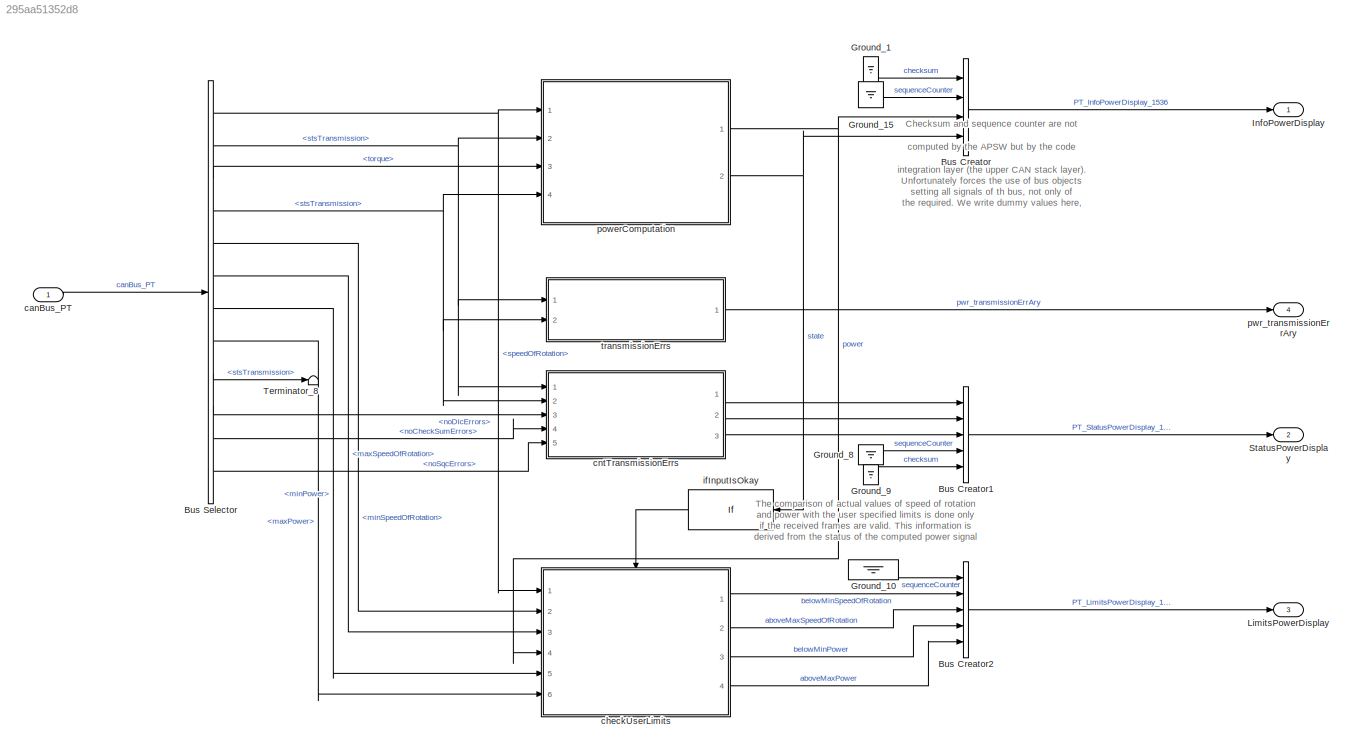
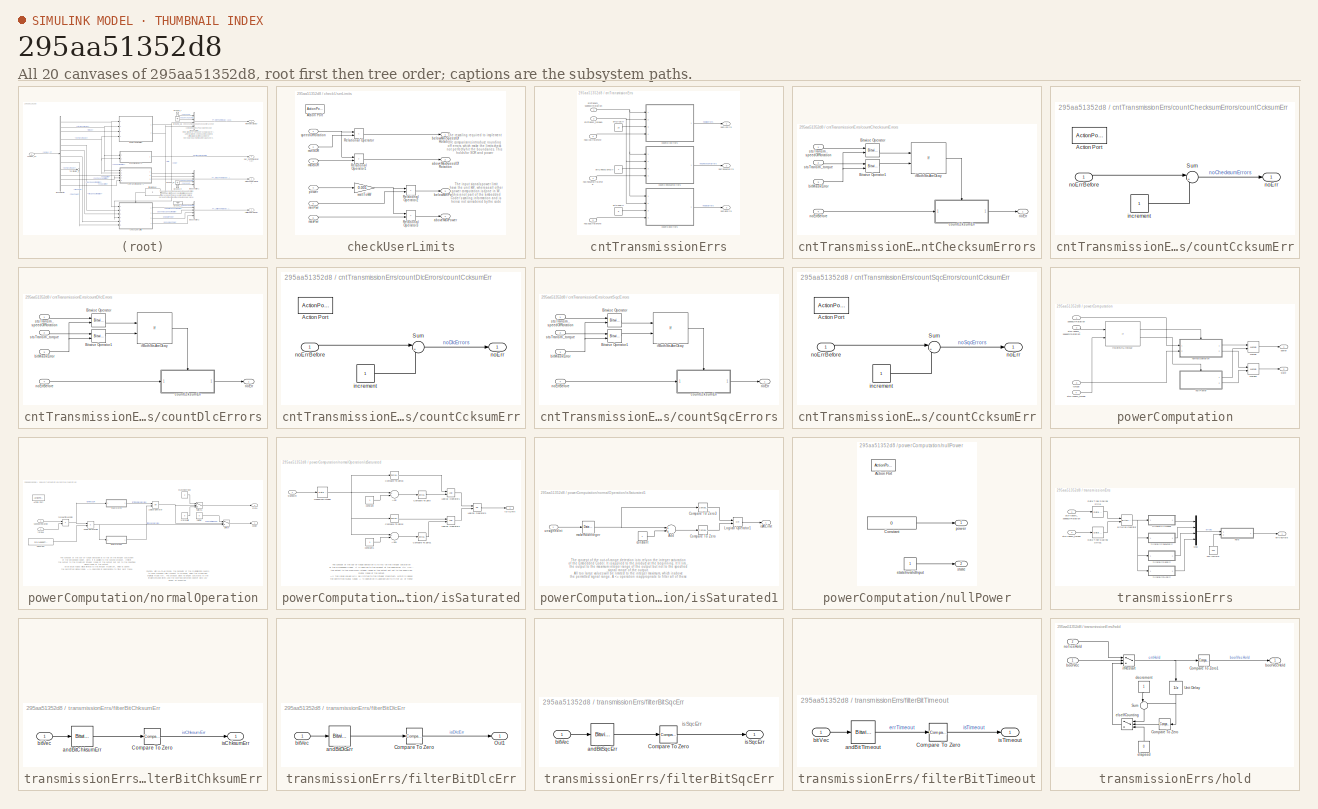
[diagram: thumbnail index - all 20 canvases of the model, root first then tree order]
MODEL slx_295aa51352d8
KIND model
CONFIG AbsTol = auto
CONFIG EnableMultiTasking = off
CONFIG FixedStep = auto
CONFIG MaxStep = auto
CONFIG MinStep = auto
CONFIG RelTol = 1e-3
CONFIG SampleTimeConstraint = Unconstrained
CONFIG Solver = FixedStepDiscrete
CONFIG SolverName = FixedStepDiscrete
CONFIG StartTime = 0.0
CONFIG StopTime = 10.0
BLOCK [BusCreator] Bus Creator
  DisplayOption = bar
  InheritFromInputs = on
  Inputs = 4
  NonVirtualBus = on
  OutDataTypeStr = Bus: cap_PT_InfoPowerDisplay_1536_t
  Ports = [4, 1]
BLOCK [BusCreator] Bus Creator1
  DisplayOption = bar
  InheritFromInputs = on
  Inputs = 5
  NonVirtualBus = on
  OutDataTypeStr = Bus: cap_PT_StatusPowerDisplay_1537_t
  Ports = [5, 1]
BLOCK [BusCreator] Bus Creator2
  DisplayOption = bar
  InheritFromInputs = on
  Inputs = 5
  NonVirtualBus = on
  OutDataTypeStr = Bus: cap_PT_LimitsPowerDisplay_1538_t
  Ports = [5, 1]
BLOCK [BusSelector] Bus Selector
  OutputAsBus = off
  OutputSignals = PT_StateEcu01_1024_sts.signals.speedOfRotation,PT_StateEcu01_1024_sts.stsTransmission,PT_StateEcu02_1040_sts.signals.torque,PT_StateEcu02_1040_sts.stsTransmission,PT_UserLimits_2032_sts.signals.minSpeedOfRotation,PT_UserLimits_2032_sts.signals.maxSpeedOfRotation,PT_UserLimits_2032_sts.signals.minPower,PT_UserLimits_2032_sts.signals.maxPower,PT_UserLimits_2032_sts.stsTransmission,PT_StatusPowerDisp...<+139ch>
  Ports = [1, 12]
BLOCK [Ground] Ground_1
BLOCK [Ground] Ground_10
BLOCK [Ground] Ground_15
BLOCK [Ground] Ground_8
BLOCK [Ground] Ground_9
BLOCK [Outport] InfoPowerDisplay
  IconDisplay = Port number
  OutDataTypeStr = Bus: cap_PT_InfoPowerDisplay_1536_t
BLOCK [Outport] LimitsPowerDisplay
  IconDisplay = Port number
  OutDataTypeStr = Bus: cap_PT_LimitsPowerDisplay_1538_t
  Port = 3
BLOCK [Outport] StatusPowerDisplay
  IconDisplay = Port number
  OutDataTypeStr = Bus: cap_PT_StatusPowerDisplay_1537_t
  Port = 2
BLOCK [Terminator] Terminator_8
BLOCK [Inport] canBus_PT
  BusOutputAsStruct = on
  IconDisplay = Port number
  OutDataTypeStr = Bus: cap_canBus_PT_t
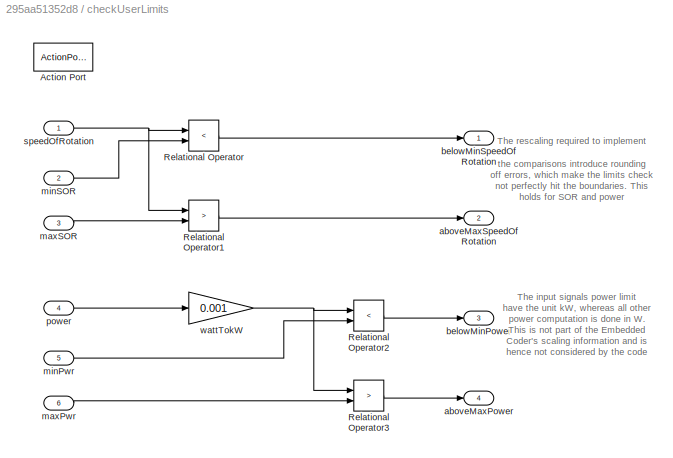
BLOCK [SubSystem] checkUserLimits
  Ports = [6, 4, 0, 0, 0, 0, 0, 1]
  RTWFcnName = pwr_detectAndCountError
  RTWFcnNameOpts = User specified
  RequestExecContextInheritance = off
  TreatAsAtomicUnit = on
BLOCK [ActionPort] checkUserLimits/Action Port
  ActionPortLabel = if(u1 == 0)
  PropagateVarSize = During execution
BLOCK [RelationalOperator] checkUserLimits/Relational Operator
  InputSameDT = off
  Operator = <
  OutDataTypeStr = boolean
  Ports = [2, 1]
BLOCK [RelationalOperator] checkUserLimits/Relational Operator1
  InputSameDT = off
  Operator = >
  OutDataTypeStr = boolean
  Ports = [2, 1]
BLOCK [RelationalOperator] checkUserLimits/Relational Operator2
  InputSameDT = off
  Operator = <
  OutDataTypeStr = boolean
  Ports = [2, 1]
BLOCK [RelationalOperator] checkUserLimits/Relational Operator3
  InputSameDT = off
  Operator = >
  OutDataTypeStr = boolean
  Ports = [2, 1]
BLOCK [Outport] checkUserLimits/aboveMaxPower
  IconDisplay = Port number
  Port = 4
BLOCK [Outport] checkUserLimits/aboveMaxSpeedOfRotation
  IconDisplay = Port number
  Port = 2
BLOCK [Outport] checkUserLimits/belowMinPower
  IconDisplay = Port number
  Port = 3
BLOCK [Outport] checkUserLimits/belowMinSpeedOfRotation
  IconDisplay = Port number
BLOCK [Inport] checkUserLimits/maxPwr
  IconDisplay = Port number
  Port = 6
BLOCK [Inport] checkUserLimits/maxSOR
  IconDisplay = Port number
  Port = 3
BLOCK [Inport] checkUserLimits/minPwr
  IconDisplay = Port number
  Port = 5
BLOCK [Inport] checkUserLimits/minSOR
  IconDisplay = Port number
  Port = 2
BLOCK [Inport] checkUserLimits/power
  IconDisplay = Port number
  Port = 4
BLOCK [Inport] checkUserLimits/speedOfRotation
  IconDisplay = Port number
BLOCK [Gain] checkUserLimits/wattTokW
  Gain = 0.001
  OutDataTypeStr = fixdt(0,16,2^-1,-10)
  ParamDataTypeStr = Inherit: Inherit via internal rule
  SaturateOnIntegerOverflow = off
BLOCK [SubSystem] cntTransmissionErrs
  Ports = [5, 3]
  RequestExecContextInheritance = off
BLOCK [Constant] cntTransmissionErrs/bitCheckSumErr
  OutDataTypeStr = uint8
  Value = 4
BLOCK [Constant] cntTransmissionErrs/bitDlcErr
  OutDataTypeStr = uint8
  Value = 16
BLOCK [Constant] cntTransmissionErrs/bitSqcErr
  OutDataTypeStr = uint8
  Value = 8
BLOCK [SubSystem] cntTransmissionErrs/countChecksumErrors
  Ports = [4, 1]
  RTWFcnName = pwr_detectAndCountError
  RTWFcnNameOpts = User specified
  RTWSystemCode = Reusable function
  RequestExecContextInheritance = off
  TreatAsAtomicUnit = on
BLOCK [Reference] cntTransmissionErrs/countChecksumErrors/Bitwise Operator  REF=simulink/Logic and Bit
Operations/Bitwise
Operator
  Ports = [2, 1]
  SourceBlock = simulink/Logic and Bit\nOperations/Bitwise\nOperator
  SourceProductBaseCode = SL
  SourceProductName = Simulink
  SourceType = Bitwise Operator
BLOCK [Reference] cntTransmissionErrs/countChecksumErrors/Bitwise Operator1  REF=simulink/Logic and Bit
Operations/Bitwise
Operator
  Ports = [2, 1]
  SourceBlock = simulink/Logic and Bit\nOperations/Bitwise\nOperator
  SourceProductBaseCode = SL
  SourceProductName = Simulink
  SourceType = Bitwise Operator
BLOCK [Inport] cntTransmissionErrs/countChecksumErrors/bitMaskError
  IconDisplay = Port number
  Port = 3
BLOCK [SubSystem] cntTransmissionErrs/countChecksumErrors/countCcksumErr
  Ports = [1, 1, 0, 0, 0, 0, 0, 1]
  RequestExecContextInheritance = off
  TreatAsAtomicUnit = on
BLOCK [ActionPort] cntTransmissionErrs/countChecksumErrors/countCcksumErr/Action Port
  ActionPortLabel = if(u1 ~= 0  |  u2 ~= 0)
  PropagateVarSize = During execution
BLOCK [Sum] cntTransmissionErrs/countChecksumErrors/countCcksumErr/Sum
  IconShape = round
  InputSameDT = off
  Inputs = |++
  OutDataTypeStr = Inherit: Inherit via internal rule
  Ports = [2, 1]
  SaturateOnIntegerOverflow = off
BLOCK [Constant] cntTransmissionErrs/countChecksumErrors/countCcksumErr/increment
  OutDataTypeStr = uint8
BLOCK [Outport] cntTransmissionErrs/countChecksumErrors/countCcksumErr/noErr
  IconDisplay = Port number
BLOCK [Inport] cntTransmissionErrs/countChecksumErrors/countCcksumErr/noErrBefore
  IconDisplay = Port number
BLOCK [If] cntTransmissionErrs/countChecksumErrors/ifBothStsAreOkay
  IfExpression = u1 ~= 0  |  u2 ~= 0
  NumInputs = 2
  Ports = [2, 1]
  ShowElse = off
BLOCK [Outport] cntTransmissionErrs/countChecksumErrors/noErr
  IconDisplay = Port number
BLOCK [Inport] cntTransmissionErrs/countChecksumErrors/noErrBefore
  IconDisplay = Port number
  Port = 4
BLOCK [Inport] cntTransmissionErrs/countChecksumErrors/stsTransm_speedOfRotation
  IconDisplay = Port number
BLOCK [Inport] cntTransmissionErrs/countChecksumErrors/stsTransm_torque
  IconDisplay = Port number
  Port = 2
BLOCK [SubSystem] cntTransmissionErrs/countDlcErrors
  Ports = [4, 1]
  RTWFcnName = pwr_detectAndCountError
  RTWFcnNameOpts = User specified
  RTWSystemCode = Reusable function
  RequestExecContextInheritance = off
  TreatAsAtomicUnit = on
BLOCK [Reference] cntTransmissionErrs/countDlcErrors/Bitwise Operator  REF=simulink/Logic and Bit
Operations/Bitwise
Operator
  Ports = [2, 1]
  SourceBlock = simulink/Logic and Bit\nOperations/Bitwise\nOperator
  SourceProductBaseCode = SL
  SourceProductName = Simulink
  SourceType = Bitwise Operator
BLOCK [Reference] cntTransmissionErrs/countDlcErrors/Bitwise Operator1  REF=simulink/Logic and Bit
Operations/Bitwise
Operator
  Ports = [2, 1]
  SourceBlock = simulink/Logic and Bit\nOperations/Bitwise\nOperator
  SourceProductBaseCode = SL
  SourceProductName = Simulink
  SourceType = Bitwise Operator
BLOCK [Inport] cntTransmissionErrs/countDlcErrors/bitMaskError
  IconDisplay = Port number
  Port = 3
BLOCK [SubSystem] cntTransmissionErrs/countDlcErrors/countCcksumErr
  Ports = [1, 1, 0, 0, 0, 0, 0, 1]
  RequestExecContextInheritance = off
  TreatAsAtomicUnit = on
BLOCK [ActionPort] cntTransmissionErrs/countDlcErrors/countCcksumErr/Action Port
  ActionPortLabel = if(u1 ~= 0  |  u2 ~= 0)
  PropagateVarSize = During execution
BLOCK [Sum] cntTransmissionErrs/countDlcErrors/countCcksumErr/Sum
  IconShape = round
  InputSameDT = off
  Inputs = |++
  OutDataTypeStr = Inherit: Inherit via internal rule
  Ports = [2, 1]
  SaturateOnIntegerOverflow = off
BLOCK [Constant] cntTransmissionErrs/countDlcErrors/countCcksumErr/increment
  OutDataTypeStr = uint8
BLOCK [Outport] cntTransmissionErrs/countDlcErrors/countCcksumErr/noErr
  IconDisplay = Port number
BLOCK [Inport] cntTransmissionErrs/countDlcErrors/countCcksumErr/noErrBefore
  IconDisplay = Port number
BLOCK [If] cntTransmissionErrs/countDlcErrors/ifBothStsAreOkay
  IfExpression = u1 ~= 0  |  u2 ~= 0
  NumInputs = 2
  Ports = [2, 1]
  ShowElse = off
BLOCK [Outport] cntTransmissionErrs/countDlcErrors/noErr
  IconDisplay = Port number
BLOCK [Inport] cntTransmissionErrs/countDlcErrors/noErrBefore
  IconDisplay = Port number
  Port = 4
BLOCK [Inport] cntTransmissionErrs/countDlcErrors/stsTransm_speedOfRotation
  IconDisplay = Port number
BLOCK [Inport] cntTransmissionErrs/countDlcErrors/stsTransm_torque
  IconDisplay = Port number
  Port = 2
BLOCK [SubSystem] cntTransmissionErrs/countSqcErrors
  Ports = [4, 1]
  RTWFcnName = pwr_detectAndCountError
  RTWFcnNameOpts = User specified
  RTWSystemCode = Reusable function
  RequestExecContextInheritance = off
  TreatAsAtomicUnit = on
BLOCK [Reference] cntTransmissionErrs/countSqcErrors/Bitwise Operator  REF=simulink/Logic and Bit
Operations/Bitwise
Operator
  Ports = [2, 1]
  SourceBlock = simulink/Logic and Bit\nOperations/Bitwise\nOperator
  SourceProductBaseCode = SL
  SourceProductName = Simulink
  SourceType = Bitwise Operator
BLOCK [Reference] cntTransmissionErrs/countSqcErrors/Bitwise Operator1  REF=simulink/Logic and Bit
Operations/Bitwise
Operator
  Ports = [2, 1]
  SourceBlock = simulink/Logic and Bit\nOperations/Bitwise\nOperator
  SourceProductBaseCode = SL
  SourceProductName = Simulink
  SourceType = Bitwise Operator
BLOCK [Inport] cntTransmissionErrs/countSqcErrors/bitMaskError
  IconDisplay = Port number
  Port = 3
BLOCK [SubSystem] cntTransmissionErrs/countSqcErrors/countCcksumErr
  Ports = [1, 1, 0, 0, 0, 0, 0, 1]
  RequestExecContextInheritance = off
  TreatAsAtomicUnit = on
BLOCK [ActionPort] cntTransmissionErrs/countSqcErrors/countCcksumErr/Action Port
  ActionPortLabel = if(u1 ~= 0  |  u2 ~= 0)
  PropagateVarSize = During execution
BLOCK [Sum] cntTransmissionErrs/countSqcErrors/countCcksumErr/Sum
  IconShape = round
  InputSameDT = off
  Inputs = |++
  OutDataTypeStr = Inherit: Inherit via internal rule
  Ports = [2, 1]
  SaturateOnIntegerOverflow = off
BLOCK [Constant] cntTransmissionErrs/countSqcErrors/countCcksumErr/increment
  OutDataTypeStr = uint8
BLOCK [Outport] cntTransmissionErrs/countSqcErrors/countCcksumErr/noErr
  IconDisplay = Port number
BLOCK [Inport] cntTransmissionErrs/countSqcErrors/countCcksumErr/noErrBefore
  IconDisplay = Port number
BLOCK [If] cntTransmissionErrs/countSqcErrors/ifBothStsAreOkay
  IfExpression = u1 ~= 0  |  u2 ~= 0
  NumInputs = 2
  Ports = [2, 1]
  ShowElse = off
BLOCK [Outport] cntTransmissionErrs/countSqcErrors/noErr
  IconDisplay = Port number
BLOCK [Inport] cntTransmissionErrs/countSqcErrors/noErrBefore
  IconDisplay = Port number
  Port = 4
BLOCK [Inport] cntTransmissionErrs/countSqcErrors/stsTransm_speedOfRotation
  IconDisplay = Port number
BLOCK [Inport] cntTransmissionErrs/countSqcErrors/stsTransm_torque
  IconDisplay = Port number
  Port = 2
BLOCK [Inport] cntTransmissionErrs/noChksumErrBefore
  IconDisplay = Port number
  Port = 4
BLOCK [Outport] cntTransmissionErrs/noChksumErrs
  IconDisplay = Port number
  Port = 2
BLOCK [Inport] cntTransmissionErrs/noDlcErrBefore
  IconDisplay = Port number
  Port = 3
BLOCK [Outport] cntTransmissionErrs/noDlcErrs
  IconDisplay = Port number
BLOCK [Inport] cntTransmissionErrs/noSqcErrBefore
  IconDisplay = Port number
  Port = 5
BLOCK [Outport] cntTransmissionErrs/noSqcErrs
  IconDisplay = Port number
  Port = 3
BLOCK [Inport] cntTransmissionErrs/stsTransm_speedOfRotation
  IconDisplay = Port number
BLOCK [Inport] cntTransmissionErrs/stsTransm_torque1
  IconDisplay = Port number
  Port = 2
BLOCK [If] ifInputIsOkay
  IfExpression = u1 == 0
  Ports = [1, 1]
  ShowElse = off
BLOCK [SubSystem] powerComputation
  Ports = [4, 2]
  RequestExecContextInheritance = off
BLOCK [Merge] powerComputation/Merge
  Ports = [2, 1]
BLOCK [Merge] powerComputation/Merge1
  Ports = [2, 1]
BLOCK [If] powerComputation/ifBothStsAreOkay
  IfExpression = u1 == 0  &  u2 == 0
  NumInputs = 2
  Ports = [2, 2]
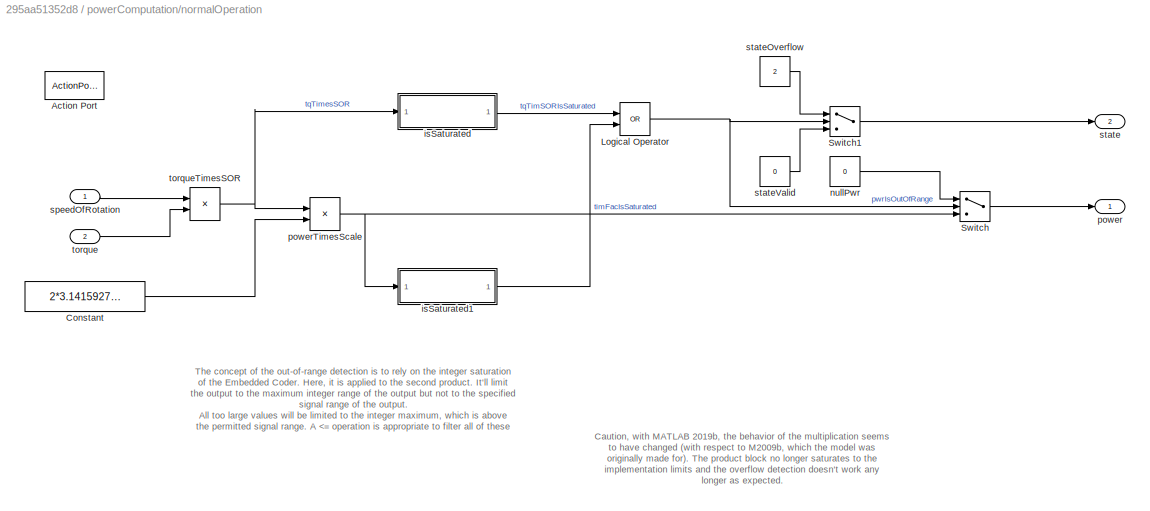
BLOCK [SubSystem] powerComputation/normalOperation
  Ports = [2, 2, 0, 0, 0, 0, 0, 1]
  RequestExecContextInheritance = off
  TreatAsAtomicUnit = on
BLOCK [ActionPort] powerComputation/normalOperation/Action Port
  ActionPortLabel = if(u1 == 0  &  u2 == 0)
  PropagateVarSize = During execution
BLOCK [Constant] powerComputation/normalOperation/Constant
  OutDataTypeStr = fixdt(0,16,19)
  Value = 2*3.1415927/60
BLOCK [Logic] powerComputation/normalOperation/Logical Operator
  AllPortsSameDT = off
  Operator = OR
  OutDataTypeStr = boolean
  Ports = [2, 1]
BLOCK [Switch] powerComputation/normalOperation/Switch
  Criteria = u2 ~= 0
  InputSameDT = off
  OutDataTypeStr = Inherit: Inherit via back propagation
  SaturateOnIntegerOverflow = off
BLOCK [Switch] powerComputation/normalOperation/Switch1
  Criteria = u2 ~= 0
  InputSameDT = off
  OutDataTypeStr = Inherit: Inherit via back propagation
  SaturateOnIntegerOverflow = off
BLOCK [SubSystem] powerComputation/normalOperation/isSaturated
  Ports = [1, 1]
  RequestExecContextInheritance = off
BLOCK [Sum] powerComputation/normalOperation/isSaturated/Add
  AccumDataTypeStr = Inherit: Same as first input
  InputSameDT = off
  OutDataTypeStr = Inherit: Same as accumulator
  Ports = [2, 1]
  RndMeth = Simplest
  SaturateOnIntegerOverflow = off
BLOCK [Sum] powerComputation/normalOperation/isSaturated/Add1
  AccumDataTypeStr = Inherit: Same as first input
  InputSameDT = off
  Inputs = +-
  OutDataTypeStr = Inherit: Same as accumulator
  Ports = [2, 1]
  RndMeth = Simplest
  SaturateOnIntegerOverflow = off
BLOCK [Reference] powerComputation/normalOperation/isSaturated/Compare To Zero  REF=simulink/Logic and Bit
Operations/Compare
To Zero
  Ports = [1, 1]
  SourceBlock = simulink/Logic and Bit\nOperations/Compare\nTo Zero
  SourceProductBaseCode = SL
  SourceProductName = Simulink
  SourceType = Compare To Zero
BLOCK [Reference] powerComputation/normalOperation/isSaturated/Compare To Zero1  REF=simulink/Logic and Bit
Operations/Compare
To Zero
  Ports = [1, 1]
  SourceBlock = simulink/Logic and Bit\nOperations/Compare\nTo Zero
  SourceProductBaseCode = SL
  SourceProductName = Simulink
  SourceType = Compare To Zero
BLOCK [Reference] powerComputation/normalOperation/isSaturated/Compare To Zero2  REF=simulink/Logic and Bit
Operations/Compare
To Zero
  Ports = [1, 1]
  SourceBlock = simulink/Logic and Bit\nOperations/Compare\nTo Zero
  SourceProductBaseCode = SL
  SourceProductName = Simulink
  SourceType = Compare To Zero
BLOCK [Reference] powerComputation/normalOperation/isSaturated/Compare To Zero3  REF=simulink/Logic and Bit
Operations/Compare
To Zero
  Ports = [1, 1]
  SourceBlock = simulink/Logic and Bit\nOperations/Compare\nTo Zero
  SourceProductBaseCode = SL
  SourceProductName = Simulink
  SourceType = Compare To Zero
BLOCK [Logic] powerComputation/normalOperation/isSaturated/Logical Operator1
  AllPortsSameDT = off
  OutDataTypeStr = boolean
  Ports = [2, 1]
BLOCK [Logic] powerComputation/normalOperation/isSaturated/Logical Operator2
  AllPortsSameDT = off
  OutDataTypeStr = boolean
  Ports = [2, 1]
BLOCK [Logic] powerComputation/normalOperation/isSaturated/Logical Operator3
  AllPortsSameDT = off
  Operator = OR
  OutDataTypeStr = boolean
  Ports = [2, 1]
BLOCK [Constant] powerComputation/normalOperation/isSaturated/constant
  OutDataTypeStr = Inherit: Inherit via back propagation
BLOCK [Constant] powerComputation/normalOperation/isSaturated/constant1
  OutDataTypeStr = Inherit: Inherit via back propagation
BLOCK [Outport] powerComputation/normalOperation/isSaturated/isAtLimit
  IconDisplay = Port number
BLOCK [Reference] powerComputation/normalOperation/isSaturated/makeRawInteger  REF=simulink/Signal
Attributes/Data Type
Scaling Strip
  Ports = [1, 1]
  SourceBlock = simulink/Signal\nAttributes/Data Type\nScaling Strip
  SourceProductBaseCode = SL
  SourceProductName = Simulink
  SourceType = Scaling Strip
BLOCK [Inport] powerComputation/normalOperation/isSaturated/signedInt
  IconDisplay = Port number
BLOCK [SubSystem] powerComputation/normalOperation/isSaturated1
  Ports = [1, 1]
  RequestExecContextInheritance = off
BLOCK [Sum] powerComputation/normalOperation/isSaturated1/Add
  AccumDataTypeStr = Inherit: Same as first input
  InputSameDT = off
  OutDataTypeStr = Inherit: Same as accumulator
  Ports = [2, 1]
  RndMeth = Simplest
  SaturateOnIntegerOverflow = off
BLOCK [Reference] powerComputation/normalOperation/isSaturated1/Compare To Zero  REF=simulink/Logic and Bit
Operations/Compare
To Zero
  Ports = [1, 1]
  SourceBlock = simulink/Logic and Bit\nOperations/Compare\nTo Zero
  SourceProductBaseCode = SL
  SourceProductName = Simulink
  SourceType = Compare To Zero
BLOCK [Reference] powerComputation/normalOperation/isSaturated1/Compare To Zero3  REF=simulink/Logic and Bit
Operations/Compare
To Zero
  Ports = [1, 1]
  SourceBlock = simulink/Logic and Bit\nOperations/Compare\nTo Zero
  SourceProductBaseCode = SL
  SourceProductName = Simulink
  SourceType = Compare To Zero
BLOCK [Logic] powerComputation/normalOperation/isSaturated1/Logical Operator1
  AllPortsSameDT = off
  Operator = OR
  OutDataTypeStr = boolean
  Ports = [2, 1]
BLOCK [Constant] powerComputation/normalOperation/isSaturated1/constant
  OutDataTypeStr = Inherit: Inherit via back propagation
BLOCK [Outport] powerComputation/normalOperation/isSaturated1/isAtLimit
  IconDisplay = Port number
BLOCK [Reference] powerComputation/normalOperation/isSaturated1/makeRawInteger  REF=simulink/Signal
Attributes/Data Type
Scaling Strip
  Ports = [1, 1]
  SourceBlock = simulink/Signal\nAttributes/Data Type\nScaling Strip
  SourceProductBaseCode = SL
  SourceProductName = Simulink
  SourceType = Scaling Strip
BLOCK [Inport] powerComputation/normalOperation/isSaturated1/unsignedInt
  IconDisplay = Port number
BLOCK [Constant] powerComputation/normalOperation/nullPwr
  OutDataTypeStr = Inherit: Inherit via back propagation
  Value = 0
BLOCK [Outport] powerComputation/normalOperation/power
  IconDisplay = Port number
  InitialOutput = 0
BLOCK [Product] powerComputation/normalOperation/powerTimesScale
  InputSameDT = off
  OutDataTypeStr = fixdt(0,16,2^5,-500000)
  Ports = [2, 1]
  RndMeth = Simplest
BLOCK [Inport] powerComputation/normalOperation/speedOfRotation
  IconDisplay = Port number
BLOCK [Outport] powerComputation/normalOperation/state
  IconDisplay = Port number
  InitialOutput = 1
  Port = 2
BLOCK [Constant] powerComputation/normalOperation/stateOverflow
  OutDataTypeStr = uint8
  Value = 2
BLOCK [Constant] powerComputation/normalOperation/stateValid
  OutDataTypeStr = uint8
  Value = 0
BLOCK [Inport] powerComputation/normalOperation/torque
  IconDisplay = Port number
  Port = 2
BLOCK [Product] powerComputation/normalOperation/torqueTimesSOR
  InputSameDT = off
  OutDataTypeStr = fixdt(1,32,9)
  OutMax = 6553.5*500
  OutMin = 6553.5*(-500)
  Ports = [2, 1]
  RndMeth = Simplest
BLOCK [SubSystem] powerComputation/nullPower
  Ports = [0, 2, 0, 0, 0, 0, 0, 1]
  RequestExecContextInheritance = off
  TreatAsAtomicUnit = on
BLOCK [ActionPort] powerComputation/nullPower/Action Port
  ActionPortLabel = else
  PropagateVarSize = During execution
BLOCK [Constant] powerComputation/nullPower/Constant
  OutDataTypeStr = Inherit: Inherit via back propagation
  Value = 0
BLOCK [Outport] powerComputation/nullPower/power
  IconDisplay = Port number
  InitialOutput = 0
BLOCK [Outport] powerComputation/nullPower/state
  IconDisplay = Port number
  InitialOutput = 1
  Port = 2
BLOCK [Constant] powerComputation/nullPower/stateInvalidInput
  OutDataTypeStr = uint8
BLOCK [Outport] powerComputation/power
  IconDisplay = Port number
BLOCK [Inport] powerComputation/speedOfRotation
  IconDisplay = Port number
BLOCK [Outport] powerComputation/state
  IconDisplay = Port number
  Port = 2
BLOCK [Inport] powerComputation/stsTransm_speedOfRotation
  IconDisplay = Port number
  Port = 2
BLOCK [Inport] powerComputation/stsTransm_torque
  IconDisplay = Port number
  Port = 4
BLOCK [Inport] powerComputation/torque
  IconDisplay = Port number
  Port = 3
BLOCK [Outport] pwr_transmissionErrAry
  IconDisplay = Port number
  Port = 4
BLOCK [SubSystem] transmissionErrs
  Ports = [2, 1]
  RequestExecContextInheritance = off
BLOCK [Reference] transmissionErrs/Bitwise Operator  REF=simulink/Logic and Bit
Operations/Bitwise
Operator
  Ports = [2, 1]
  SourceBlock = simulink/Logic and Bit\nOperations/Bitwise\nOperator
  SourceProductBaseCode = SL
  SourceProductName = Simulink
  SourceType = Bitwise Operator
BLOCK [Reference] transmissionErrs/Data Type Scaling Strip  REF=simulink/Signal
Attributes/Data Type
Scaling Strip
  Ports = [1, 1]
  SourceBlock = simulink/Signal\nAttributes/Data Type\nScaling Strip
  SourceProductBaseCode = SL
  SourceProductName = Simulink
  SourceType = Scaling Strip
BLOCK [Reference] transmissionErrs/Data Type Scaling Strip1  REF=simulink/Signal
Attributes/Data Type
Scaling Strip
  Ports = [1, 1]
  SourceBlock = simulink/Signal\nAttributes/Data Type\nScaling Strip
  SourceProductBaseCode = SL
  SourceProductName = Simulink
  SourceType = Scaling Strip
BLOCK [Mux] transmissionErrs/Mux
  DisplayOption = bar
  Ports = [4, 1]
BLOCK [Outport] transmissionErrs/errVecHold
  IconDisplay = Port number
BLOCK [SubSystem] transmissionErrs/filterBitChksumErr
  Ports = [1, 1]
  RequestExecContextInheritance = off
BLOCK [Reference] transmissionErrs/filterBitChksumErr/Compare To Zero  REF=simulink/Logic and Bit
Operations/Compare
To Zero
  Ports = [1, 1]
  SourceBlock = simulink/Logic and Bit\nOperations/Compare\nTo Zero
  SourceProductBaseCode = SL
  SourceProductName = Simulink
  SourceType = Compare To Zero
BLOCK [Reference] transmissionErrs/filterBitChksumErr/andBitChksumErr  REF=simulink/Logic and Bit
Operations/Bitwise
Operator
  Ports = [1, 1]
  SourceBlock = simulink/Logic and Bit\nOperations/Bitwise\nOperator
  SourceProductBaseCode = SL
  SourceProductName = Simulink
  SourceType = Bitwise Operator
BLOCK [Inport] transmissionErrs/filterBitChksumErr/bitVec
  IconDisplay = Port number
BLOCK [Outport] transmissionErrs/filterBitChksumErr/isChksumErr
  IconDisplay = Port number
BLOCK [SubSystem] transmissionErrs/filterBitDlcErr
  Ports = [1, 1]
  RequestExecContextInheritance = off
BLOCK [Reference] transmissionErrs/filterBitDlcErr/Compare To Zero  REF=simulink/Logic and Bit
Operations/Compare
To Zero
  Ports = [1, 1]
  SourceBlock = simulink/Logic and Bit\nOperations/Compare\nTo Zero
  SourceProductBaseCode = SL
  SourceProductName = Simulink
  SourceType = Compare To Zero
BLOCK [Outport] transmissionErrs/filterBitDlcErr/Out1
  IconDisplay = Port number
BLOCK [Reference] transmissionErrs/filterBitDlcErr/andBitDlcErr  REF=simulink/Logic and Bit
Operations/Bitwise
Operator
  Ports = [1, 1]
  SourceBlock = simulink/Logic and Bit\nOperations/Bitwise\nOperator
  SourceProductBaseCode = SL
  SourceProductName = Simulink
  SourceType = Bitwise Operator
BLOCK [Inport] transmissionErrs/filterBitDlcErr/bitVec
  IconDisplay = Port number
BLOCK [SubSystem] transmissionErrs/filterBitSqcErr
  Ports = [1, 1]
  RequestExecContextInheritance = off
BLOCK [Reference] transmissionErrs/filterBitSqcErr/Compare To Zero  REF=simulink/Logic and Bit
Operations/Compare
To Zero
  Ports = [1, 1]
  SourceBlock = simulink/Logic and Bit\nOperations/Compare\nTo Zero
  SourceProductBaseCode = SL
  SourceProductName = Simulink
  SourceType = Compare To Zero
BLOCK [Reference] transmissionErrs/filterBitSqcErr/andBitSqcErr  REF=simulink/Logic and Bit
Operations/Bitwise
Operator
  Ports = [1, 1]
  SourceBlock = simulink/Logic and Bit\nOperations/Bitwise\nOperator
  SourceProductBaseCode = SL
  SourceProductName = Simulink
  SourceType = Bitwise Operator
BLOCK [Inport] transmissionErrs/filterBitSqcErr/bitVec
  IconDisplay = Port number
BLOCK [Outport] transmissionErrs/filterBitSqcErr/isSqcErr
  IconDisplay = Port number
BLOCK [SubSystem] transmissionErrs/filterBitTimeout
  Ports = [1, 1]
  RequestExecContextInheritance = off
BLOCK [Reference] transmissionErrs/filterBitTimeout/Compare To Zero  REF=simulink/Logic and Bit
Operations/Compare
To Zero
  Ports = [1, 1]
  SourceBlock = simulink/Logic and Bit\nOperations/Compare\nTo Zero
  SourceProductBaseCode = SL
  SourceProductName = Simulink
  SourceType = Compare To Zero
BLOCK [Reference] transmissionErrs/filterBitTimeout/andBitTimeout  REF=simulink/Logic and Bit
Operations/Bitwise
Operator
  Ports = [1, 1]
  SourceBlock = simulink/Logic and Bit\nOperations/Bitwise\nOperator
  SourceProductBaseCode = SL
  SourceProductName = Simulink
  SourceType = Bitwise Operator
BLOCK [Inport] transmissionErrs/filterBitTimeout/bitVec
  IconDisplay = Port number
BLOCK [Outport] transmissionErrs/filterBitTimeout/isTimeout
  IconDisplay = Port number
BLOCK [SubSystem] transmissionErrs/hold
  Ports = [2, 1]
  RequestExecContextInheritance = off
BLOCK [Reference] transmissionErrs/hold/Compare To Zero  REF=simulink/Logic and Bit
Operations/Compare
To Zero
  Ports = [1, 1]
  SourceBlock = simulink/Logic and Bit\nOperations/Compare\nTo Zero
  SourceProductBaseCode = SL
  SourceProductName = Simulink
  SourceType = Compare To Zero
BLOCK [Reference] transmissionErrs/hold/Compare To Zero1  REF=simulink/Logic and Bit
Operations/Compare
To Zero
  Ports = [1, 1]
  SourceBlock = simulink/Logic and Bit\nOperations/Compare\nTo Zero
  SourceProductBaseCode = SL
  SourceProductName = Simulink
  SourceType = Compare To Zero
BLOCK [Sum] transmissionErrs/hold/Sum
  IconShape = round
  InputSameDT = off
  Inputs = |-+
  OutDataTypeStr = Inherit: Inherit via internal rule
  Ports = [2, 1]
  SaturateOnIntegerOverflow = off
BLOCK [UnitDelay] transmissionErrs/hold/Unit Delay
  SampleTime = -1
BLOCK [Inport] transmissionErrs/hold/boolVec
  IconDisplay = Port number
BLOCK [Outport] transmissionErrs/hold/boolVecHold
  IconDisplay = Port number
BLOCK [Constant] transmissionErrs/hold/decrement
  OutDataTypeStr = uint8
BLOCK [Constant] transmissionErrs/hold/elapsed
  OutDataTypeStr = uint8
  Value = 0
BLOCK [Switch] transmissionErrs/hold/elseIfCounting
  Criteria = u2 ~= 0
  InputSameDT = off
  SaturateOnIntegerOverflow = off
BLOCK [Switch] transmissionErrs/hold/ifRestart
  Criteria = u2 ~= 0
  InputSameDT = off
  SaturateOnIntegerOverflow = off
BLOCK [Inport] transmissionErrs/hold/noTicsHold
  IconDisplay = Port number
  Port = 2
BLOCK [Constant] transmissionErrs/noTicsHold
  OutDataTypeStr = uint8
  Value = 200
BLOCK [Inport] transmissionErrs/stsTransm_speedOfRotation
  IconDisplay = Port number
BLOCK [Inport] transmissionErrs/stsTransm_torque
  IconDisplay = Port number
  Port = 2
ANNOTATION (root): Checksum and sequence counter are not computed by the APSW but by the code integration layer (the upper CAN stack layer). Unfortunately forces the use of bus objects setting all signals of th bus, not only of the required. We write dummy values here, which will be overwritten by the CAN stack
ANNOTATION (root): The comparison of actual values of speed of rotation and power with the user specified limits is done only if the received frames are valid. This information is derived from the status of the computed power signal
ANNOTATION checkUserLimits: The input signals power limit have the unit kW, whereas all other power computation is done in W. This is not part of the Embedded Coder's scaling information and is hence not considered by the code generation. We need to perform this kind of rescaling by an explicit multiplication operation
ANNOTATION checkUserLimits: The rescaling required to implement the comparisons introduce rounding off errors, which make the limits check not perfectly hit the boundaries. This holds for SOR and power
ANNOTATION powerComputation/normalOperation: Caution, with MATLAB 2019b, the behavior of the multiplication seems to have changed (with respect to M2009b, which the model was originally made for). The product block no longer saturates to the implementation limits and the overflow detection doesn't work any longer as expected.
ANNOTATION powerComputation/normalOperation: The concept of the out-of-range detection is to rely on the integer saturation of the Embedded Coder. Here, it is applied to the second product. It'll limit the output to the maximum integer range of the output but not to the specified signal range of the output. All too large values will be limited to the integer maximum, which is above the permitted signal range. A <= operation is appropriate to...<+851ch>
ANNOTATION powerComputation/normalOperation/isSaturated: The concept of the out-of-range detection is to rely on the integer saturation of the Embedded Coder. It is applied to the product at the beginning. It'll limit the output to the maximum integer range of the output but not to the specified signal range of the output. All too large values will be limited to the integer maximum, which is above the permitted signal range. A <= operation is appropriat...<+855ch>
ANNOTATION powerComputation/normalOperation/isSaturated1: The concept of the out-of-range detection is to rely on the integer saturation of the Embedded Coder. It is applied to the product at the beginning. It'll limit the output to the maximum integer range of the output but not to the specified signal range of the output. All too large values will be limited to the integer maximum, which is above the permitted signal range. A <= operation is appropriat...<+855ch>
ANNOTATION transmissionErrs/filterBitSqcErr: isSqcErr
LINE Bus Creator1:1 -> StatusPowerDisplay:1
LINE Bus Creator2:1 -> LimitsPowerDisplay:1
LINE Bus Creator:1 -> InfoPowerDisplay:1
NET Bus Selector:1 -> checkUserLimits:1, powerComputation:1
LINE Bus Selector:10 -> cntTransmissionErrs:3
LINE Bus Selector:11 -> cntTransmissionErrs:4
LINE Bus Selector:12 -> cntTransmissionErrs:5
NET Bus Selector:2 -> cntTransmissionErrs:1, powerComputation:2, transmissionErrs:1
LINE Bus Selector:3 -> powerComputation:3
NET Bus Selector:4 -> cntTransmissionErrs:2, powerComputation:4, transmissionErrs:2
LINE Bus Selector:5 -> checkUserLimits:2
LINE Bus Selector:6 -> checkUserLimits:3
LINE Bus Selector:7 -> checkUserLimits:5
LINE Bus Selector:8 -> checkUserLimits:6
LINE Bus Selector:9 -> Terminator_8:1
LINE Ground_10:1 -> Bus Creator2:1
LINE Ground_15:1 -> Bus Creator:2
LINE Ground_1:1 -> Bus Creator:1
LINE Ground_8:1 -> Bus Creator1:4
LINE Ground_9:1 -> Bus Creator1:5
LINE canBus_PT:1 -> Bus Selector:1
LINE checkUserLimits/Relational Operator1:1 -> checkUserLimits/aboveMaxSpeedOfRotation:1
LINE checkUserLimits/Relational Operator2:1 -> checkUserLimits/belowMinPower:1
LINE checkUserLimits/Relational Operator3:1 -> checkUserLimits/aboveMaxPower:1
LINE checkUserLimits/Relational Operator:1 -> checkUserLimits/belowMinSpeedOfRotation:1
LINE checkUserLimits/maxPwr:1 -> checkUserLimits/Relational Operator3:2
LINE checkUserLimits/maxSOR:1 -> checkUserLimits/Relational Operator1:2
LINE checkUserLimits/minPwr:1 -> checkUserLimits/Relational Operator2:2
LINE checkUserLimits/minSOR:1 -> checkUserLimits/Relational Operator:2
LINE checkUserLimits/power:1 -> checkUserLimits/wattTokW:1
NET checkUserLimits/speedOfRotation:1 -> checkUserLimits/Relational Operator1:1, checkUserLimits/Relational Operator:1
NET checkUserLimits/wattTokW:1 -> checkUserLimits/Relational Operator2:1, checkUserLimits/Relational Operator3:1
LINE checkUserLimits:1 -> Bus Creator2:2
LINE checkUserLimits:2 -> Bus Creator2:3
LINE checkUserLimits:3 -> Bus Creator2:4
LINE checkUserLimits:4 -> Bus Creator2:5
LINE cntTransmissionErrs/bitCheckSumErr:1 -> cntTransmissionErrs/countChecksumErrors:3
LINE cntTransmissionErrs/bitDlcErr:1 -> cntTransmissionErrs/countDlcErrors:3
LINE cntTransmissionErrs/bitSqcErr:1 -> cntTransmissionErrs/countSqcErrors:3
LINE cntTransmissionErrs/countChecksumErrors/Bitwise Operator1:1 -> cntTransmissionErrs/countChecksumErrors/ifBothStsAreOkay:2
LINE cntTransmissionErrs/countChecksumErrors/Bitwise Operator:1 -> cntTransmissionErrs/countChecksumErrors/ifBothStsAreOkay:1
NET cntTransmissionErrs/countChecksumErrors/bitMaskError:1 -> cntTransmissionErrs/countChecksumErrors/Bitwise Operator1:2, cntTransmissionErrs/countChecksumErrors/Bitwise Operator:2
LINE cntTransmissionErrs/countChecksumErrors/countCcksumErr/Sum:1 -> cntTransmissionErrs/countChecksumErrors/countCcksumErr/noErr:1
LINE cntTransmissionErrs/countChecksumErrors/countCcksumErr/increment:1 -> cntTransmissionErrs/countChecksumErrors/countCcksumErr/Sum:2
LINE cntTransmissionErrs/countChecksumErrors/countCcksumErr/noErrBefore:1 -> cntTransmissionErrs/countChecksumErrors/countCcksumErr/Sum:1
LINE cntTransmissionErrs/countChecksumErrors/countCcksumErr:1 -> cntTransmissionErrs/countChecksumErrors/noErr:1
LINE cntTransmissionErrs/countChecksumErrors/ifBothStsAreOkay:1 -> cntTransmissionErrs/countChecksumErrors/countCcksumErr:ifaction
LINE cntTransmissionErrs/countChecksumErrors/noErrBefore:1 -> cntTransmissionErrs/countChecksumErrors/countCcksumErr:1
LINE cntTransmissionErrs/countChecksumErrors/stsTransm_speedOfRotation:1 -> cntTransmissionErrs/countChecksumErrors/Bitwise Operator:1
LINE cntTransmissionErrs/countChecksumErrors/stsTransm_torque:1 -> cntTransmissionErrs/countChecksumErrors/Bitwise Operator1:1
LINE cntTransmissionErrs/countChecksumErrors:1 -> cntTransmissionErrs/noChksumErrs:1
LINE cntTransmissionErrs/countDlcErrors/Bitwise Operator1:1 -> cntTransmissionErrs/countDlcErrors/ifBothStsAreOkay:2
LINE cntTransmissionErrs/countDlcErrors/Bitwise Operator:1 -> cntTransmissionErrs/countDlcErrors/ifBothStsAreOkay:1
NET cntTransmissionErrs/countDlcErrors/bitMaskError:1 -> cntTransmissionErrs/countDlcErrors/Bitwise Operator1:2, cntTransmissionErrs/countDlcErrors/Bitwise Operator:2
LINE cntTransmissionErrs/countDlcErrors/countCcksumErr/Sum:1 -> cntTransmissionErrs/countDlcErrors/countCcksumErr/noErr:1
LINE cntTransmissionErrs/countDlcErrors/countCcksumErr/increment:1 -> cntTransmissionErrs/countDlcErrors/countCcksumErr/Sum:2
LINE cntTransmissionErrs/countDlcErrors/countCcksumErr/noErrBefore:1 -> cntTransmissionErrs/countDlcErrors/countCcksumErr/Sum:1
LINE cntTransmissionErrs/countDlcErrors/countCcksumErr:1 -> cntTransmissionErrs/countDlcErrors/noErr:1
LINE cntTransmissionErrs/countDlcErrors/ifBothStsAreOkay:1 -> cntTransmissionErrs/countDlcErrors/countCcksumErr:ifaction
LINE cntTransmissionErrs/countDlcErrors/noErrBefore:1 -> cntTransmissionErrs/countDlcErrors/countCcksumErr:1
LINE cntTransmissionErrs/countDlcErrors/stsTransm_speedOfRotation:1 -> cntTransmissionErrs/countDlcErrors/Bitwise Operator:1
LINE cntTransmissionErrs/countDlcErrors/stsTransm_torque:1 -> cntTransmissionErrs/countDlcErrors/Bitwise Operator1:1
LINE cntTransmissionErrs/countDlcErrors:1 -> cntTransmissionErrs/noDlcErrs:1
LINE cntTransmissionErrs/countSqcErrors/Bitwise Operator1:1 -> cntTransmissionErrs/countSqcErrors/ifBothStsAreOkay:2
LINE cntTransmissionErrs/countSqcErrors/Bitwise Operator:1 -> cntTransmissionErrs/countSqcErrors/ifBothStsAreOkay:1
NET cntTransmissionErrs/countSqcErrors/bitMaskError:1 -> cntTransmissionErrs/countSqcErrors/Bitwise Operator1:2, cntTransmissionErrs/countSqcErrors/Bitwise Operator:2
LINE cntTransmissionErrs/countSqcErrors/countCcksumErr/Sum:1 -> cntTransmissionErrs/countSqcErrors/countCcksumErr/noErr:1
LINE cntTransmissionErrs/countSqcErrors/countCcksumErr/increment:1 -> cntTransmissionErrs/countSqcErrors/countCcksumErr/Sum:2
LINE cntTransmissionErrs/countSqcErrors/countCcksumErr/noErrBefore:1 -> cntTransmissionErrs/countSqcErrors/countCcksumErr/Sum:1
LINE cntTransmissionErrs/countSqcErrors/countCcksumErr:1 -> cntTransmissionErrs/countSqcErrors/noErr:1
LINE cntTransmissionErrs/countSqcErrors/ifBothStsAreOkay:1 -> cntTransmissionErrs/countSqcErrors/countCcksumErr:ifaction
LINE cntTransmissionErrs/countSqcErrors/noErrBefore:1 -> cntTransmissionErrs/countSqcErrors/countCcksumErr:1
LINE cntTransmissionErrs/countSqcErrors/stsTransm_speedOfRotation:1 -> cntTransmissionErrs/countSqcErrors/Bitwise Operator:1
LINE cntTransmissionErrs/countSqcErrors/stsTransm_torque:1 -> cntTransmissionErrs/countSqcErrors/Bitwise Operator1:1
LINE cntTransmissionErrs/countSqcErrors:1 -> cntTransmissionErrs/noSqcErrs:1
LINE cntTransmissionErrs/noChksumErrBefore:1 -> cntTransmissionErrs/countChecksumErrors:4
LINE cntTransmissionErrs/noDlcErrBefore:1 -> cntTransmissionErrs/countDlcErrors:4
LINE cntTransmissionErrs/noSqcErrBefore:1 -> cntTransmissionErrs/countSqcErrors:4
NET cntTransmissionErrs/stsTransm_speedOfRotation:1 -> cntTransmissionErrs/countChecksumErrors:1, cntTransmissionErrs/countDlcErrors:1, cntTransmissionErrs/countSqcErrors:1
NET cntTransmissionErrs/stsTransm_torque1:1 -> cntTransmissionErrs/countChecksumErrors:2, cntTransmissionErrs/countDlcErrors:2, cntTransmissionErrs/countSqcErrors:2
LINE cntTransmissionErrs:1 -> Bus Creator1:1
LINE cntTransmissionErrs:2 -> Bus Creator1:2
LINE cntTransmissionErrs:3 -> Bus Creator1:3
LINE ifInputIsOkay:1 -> checkUserLimits:ifaction
LINE powerComputation/Merge1:1 -> powerComputation/state:1
LINE powerComputation/Merge:1 -> powerComputation/power:1
LINE powerComputation/ifBothStsAreOkay:1 -> powerComputation/normalOperation:ifaction
LINE powerComputation/ifBothStsAreOkay:2 -> powerComputation/nullPower:ifaction
LINE powerComputation/normalOperation/Constant:1 -> powerComputation/normalOperation/powerTimesScale:2
NET powerComputation/normalOperation/Logical Operator:1 -> powerComputation/normalOperation/Switch1:2, powerComputation/normalOperation/Switch:2
LINE powerComputation/normalOperation/Switch1:1 -> powerComputation/normalOperation/state:1
LINE powerComputation/normalOperation/Switch:1 -> powerComputation/normalOperation/power:1
LINE powerComputation/normalOperation/isSaturated/Add1:1 -> powerComputation/normalOperation/isSaturated/Compare To Zero1:1
LINE powerComputation/normalOperation/isSaturated/Add:1 -> powerComputation/normalOperation/isSaturated/Compare To Zero:1
LINE powerComputation/normalOperation/isSaturated/Compare To Zero1:1 -> powerComputation/normalOperation/isSaturated/Logical Operator2:2
LINE powerComputation/normalOperation/isSaturated/Compare To Zero2:1 -> powerComputation/normalOperation/isSaturated/Logical Operator2:1
LINE powerComputation/normalOperation/isSaturated/Compare To Zero3:1 -> powerComputation/normalOperation/isSaturated/Logical Operator1:1
LINE powerComputation/normalOperation/isSaturated/Compare To Zero:1 -> powerComputation/normalOperation/isSaturated/Logical Operator1:2
LINE powerComputation/normalOperation/isSaturated/Logical Operator1:1 -> powerComputation/normalOperation/isSaturated/Logical Operator3:1
LINE powerComputation/normalOperation/isSaturated/Logical Operator2:1 -> powerComputation/normalOperation/isSaturated/Logical Operator3:2
LINE powerComputation/normalOperation/isSaturated/Logical Operator3:1 -> powerComputation/normalOperation/isSaturated/isAtLimit:1
LINE powerComputation/normalOperation/isSaturated/constant1:1 -> powerComputation/normalOperation/isSaturated/Add1:2
LINE powerComputation/normalOperation/isSaturated/constant:1 -> powerComputation/normalOperation/isSaturated/Add:2
NET powerComputation/normalOperation/isSaturated/makeRawInteger:1 -> powerComputation/normalOperation/isSaturated/Add1:1, powerComputation/normalOperation/isSaturated/Add:1, powerComputation/normalOperation/isSaturated/Compare To Zero2:1, powerComputation/normalOperation/isSaturated/Compare To Zero3:1
LINE powerComputation/normalOperation/isSaturated/signedInt:1 -> powerComputation/normalOperation/isSaturated/makeRawInteger:1
LINE powerComputation/normalOperation/isSaturated1/Add:1 -> powerComputation/normalOperation/isSaturated1/Compare To Zero:1
LINE powerComputation/normalOperation/isSaturated1/Compare To Zero3:1 -> powerComputation/normalOperation/isSaturated1/Logical Operator1:1
LINE powerComputation/normalOperation/isSaturated1/Compare To Zero:1 -> powerComputation/normalOperation/isSaturated1/Logical Operator1:2
LINE powerComputation/normalOperation/isSaturated1/Logical Operator1:1 -> powerComputation/normalOperation/isSaturated1/isAtLimit:1
LINE powerComputation/normalOperation/isSaturated1/constant:1 -> powerComputation/normalOperation/isSaturated1/Add:2
NET powerComputation/normalOperation/isSaturated1/makeRawInteger:1 -> powerComputation/normalOperation/isSaturated1/Add:1, powerComputation/normalOperation/isSaturated1/Compare To Zero3:1
LINE powerComputation/normalOperation/isSaturated1/unsignedInt:1 -> powerComputation/normalOperation/isSaturated1/makeRawInteger:1
LINE powerComputation/normalOperation/isSaturated1:1 -> powerComputation/normalOperation/Logical Operator:2
LINE powerComputation/normalOperation/isSaturated:1 -> powerComputation/normalOperation/Logical Operator:1
LINE powerComputation/normalOperation/nullPwr:1 -> powerComputation/normalOperation/Switch:1
NET powerComputation/normalOperation/powerTimesScale:1 -> powerComputation/normalOperation/Switch:3, powerComputation/normalOperation/isSaturated1:1
LINE powerComputation/normalOperation/speedOfRotation:1 -> powerComputation/normalOperation/torqueTimesSOR:1
LINE powerComputation/normalOperation/stateOverflow:1 -> powerComputation/normalOperation/Switch1:1
LINE powerComputation/normalOperation/stateValid:1 -> powerComputation/normalOperation/Switch1:3
LINE powerComputation/normalOperation/torque:1 -> powerComputation/normalOperation/torqueTimesSOR:2
NET powerComputation/normalOperation/torqueTimesSOR:1 -> powerComputation/normalOperation/isSaturated:1, powerComputation/normalOperation/powerTimesScale:1
LINE powerComputation/normalOperation:1 -> powerComputation/Merge:1
LINE powerComputation/normalOperation:2 -> powerComputation/Merge1:1
LINE powerComputation/nullPower/Constant:1 -> powerComputation/nullPower/power:1
LINE powerComputation/nullPower/stateInvalidInput:1 -> powerComputation/nullPower/state:1
LINE powerComputation/nullPower:1 -> powerComputation/Merge:2
LINE powerComputation/nullPower:2 -> powerComputation/Merge1:2
LINE powerComputation/speedOfRotation:1 -> powerComputation/normalOperation:1
LINE powerComputation/stsTransm_speedOfRotation:1 -> powerComputation/ifBothStsAreOkay:1
LINE powerComputation/stsTransm_torque:1 -> powerComputation/ifBothStsAreOkay:2
LINE powerComputation/torque:1 -> powerComputation/normalOperation:2
NET powerComputation:1 -> Bus Creator:3, checkUserLimits:4
NET powerComputation:2 -> Bus Creator:4, ifInputIsOkay:1
NET transmissionErrs/Bitwise Operator:1 -> transmissionErrs/filterBitChksumErr:1, transmissionErrs/filterBitDlcErr:1, transmissionErrs/filterBitSqcErr:1, transmissionErrs/filterBitTimeout:1
LINE transmissionErrs/Data Type Scaling Strip1:1 -> transmissionErrs/Bitwise Operator:2
LINE transmissionErrs/Data Type Scaling Strip:1 -> transmissionErrs/Bitwise Operator:1
LINE transmissionErrs/Mux:1 -> transmissionErrs/hold:1
LINE transmissionErrs/filterBitChksumErr/Compare To Zero:1 -> transmissionErrs/filterBitChksumErr/isChksumErr:1
LINE transmissionErrs/filterBitChksumErr/andBitChksumErr:1 -> transmissionErrs/filterBitChksumErr/Compare To Zero:1
LINE transmissionErrs/filterBitChksumErr/bitVec:1 -> transmissionErrs/filterBitChksumErr/andBitChksumErr:1
LINE transmissionErrs/filterBitChksumErr:1 -> transmissionErrs/Mux:2
LINE transmissionErrs/filterBitDlcErr/Compare To Zero:1 -> transmissionErrs/filterBitDlcErr/Out1:1
LINE transmissionErrs/filterBitDlcErr/andBitDlcErr:1 -> transmissionErrs/filterBitDlcErr/Compare To Zero:1
LINE transmissionErrs/filterBitDlcErr/bitVec:1 -> transmissionErrs/filterBitDlcErr/andBitDlcErr:1
LINE transmissionErrs/filterBitDlcErr:1 -> transmissionErrs/Mux:4
LINE transmissionErrs/filterBitSqcErr/Compare To Zero:1 -> transmissionErrs/filterBitSqcErr/isSqcErr:1
LINE transmissionErrs/filterBitSqcErr/andBitSqcErr:1 -> transmissionErrs/filterBitSqcErr/Compare To Zero:1
LINE transmissionErrs/filterBitSqcErr/bitVec:1 -> transmissionErrs/filterBitSqcErr/andBitSqcErr:1
LINE transmissionErrs/filterBitSqcErr:1 -> transmissionErrs/Mux:3
LINE transmissionErrs/filterBitTimeout/Compare To Zero:1 -> transmissionErrs/filterBitTimeout/isTimeout:1
LINE transmissionErrs/filterBitTimeout/andBitTimeout:1 -> transmissionErrs/filterBitTimeout/Compare To Zero:1
LINE transmissionErrs/filterBitTimeout/bitVec:1 -> transmissionErrs/filterBitTimeout/andBitTimeout:1
LINE transmissionErrs/filterBitTimeout:1 -> transmissionErrs/Mux:1
LINE transmissionErrs/hold/Compare To Zero1:1 -> transmissionErrs/hold/boolVecHold:1
LINE transmissionErrs/hold/Compare To Zero:1 -> transmissionErrs/hold/elseIfCounting:2
LINE transmissionErrs/hold/Sum:1 -> transmissionErrs/hold/elseIfCounting:1
NET transmissionErrs/hold/Unit Delay:1 -> transmissionErrs/hold/Compare To Zero:1, transmissionErrs/hold/Sum:2
LINE transmissionErrs/hold/boolVec:1 -> transmissionErrs/hold/ifRestart:2
LINE transmissionErrs/hold/decrement:1 -> transmissionErrs/hold/Sum:1
LINE transmissionErrs/hold/elapsed:1 -> transmissionErrs/hold/elseIfCounting:3
LINE transmissionErrs/hold/elseIfCounting:1 -> transmissionErrs/hold/ifRestart:3
NET transmissionErrs/hold/ifRestart:1 -> transmissionErrs/hold/Compare To Zero1:1, transmissionErrs/hold/Unit Delay:1
LINE transmissionErrs/hold/noTicsHold:1 -> transmissionErrs/hold/ifRestart:1
LINE transmissionErrs/hold:1 -> transmissionErrs/errVecHold:1
LINE transmissionErrs/noTicsHold:1 -> transmissionErrs/hold:2
LINE transmissionErrs/stsTransm_speedOfRotation:1 -> transmissionErrs/Data Type Scaling Strip:1
LINE transmissionErrs/stsTransm_torque:1 -> transmissionErrs/Data Type Scaling Strip1:1
LINE transmissionErrs:1 -> pwr_transmissionErrAry:1
note: NET lines group one-source signal fan-out (src -> all destinations, sorted); 1:1 wires keep LINE
